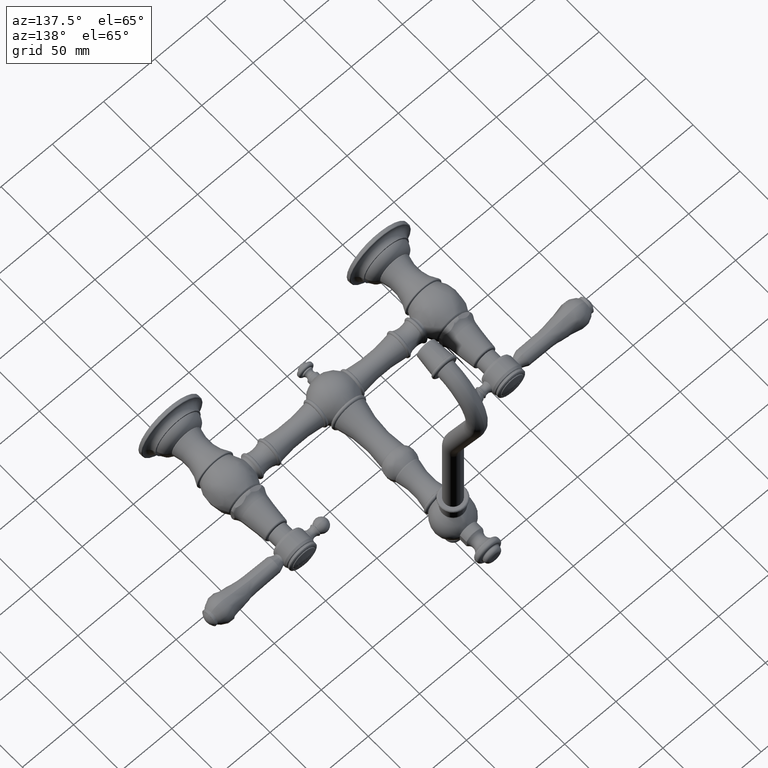
[diagram: clean part render]
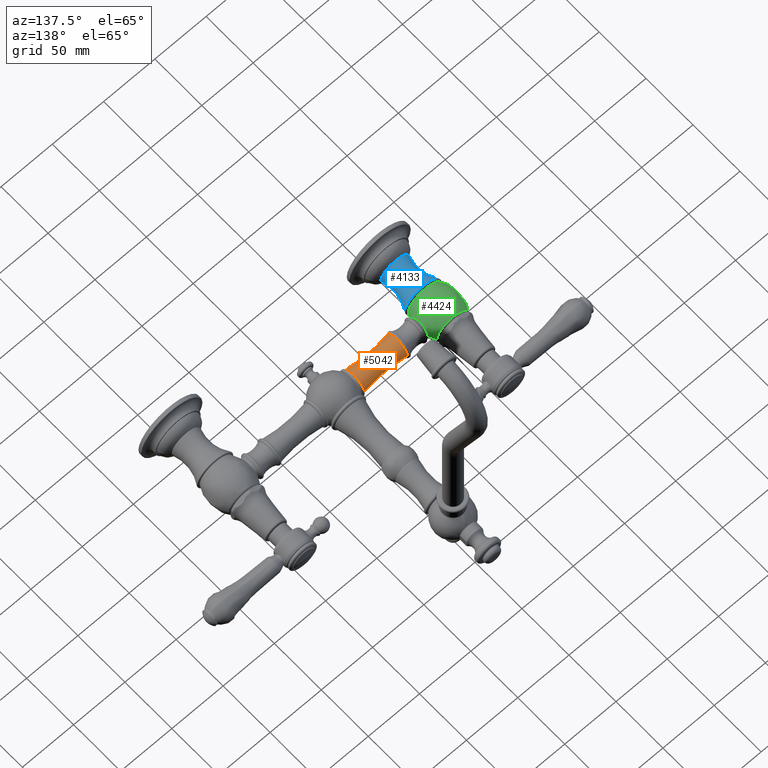
[diagram: same view with three faces highlighted in distinct colors, each labeled with its STEP entity id]
A machine part, auxiliary view with three faces highlighted in distinct colors.
Their STEP definitions:

[orange] entity #5042 — the highlighted toroidal blend (fillet) surface has major radius 135.425 mm and minor (blend) radius 126.408 mm.
#1374=CARTESIAN_POINT('',(-2.426686974877E0,0.E0,0.E0));
#1375=DIRECTION('',(1.E0,0.E0,0.E0));
#1376=DIRECTION('',(0.E0,1.E0,0.E0));
#1377=AXIS2_PLACEMENT_3D('',#1374,#1375,#1376);
#1406=CARTESIAN_POINT('',(-1.594768814263E0,5.331709717009E0,0.E0));
#1407=DIRECTION('',(0.E0,0.E0,-1.E0));
#1408=DIRECTION('',(1.671322744465E-1,-9.859344820212E-1,0.E0));
#1409=AXIS2_PLACEMENT_3D('',#1406,#1407,#1408);
#1414=CARTESIAN_POINT('',(-1.594768814263E0,-5.331709717009E0,0.E0));
#1415=DIRECTION('',(0.E0,0.E0,1.E0));
#1416=DIRECTION('',(1.671322744465E-1,9.859344820212E-1,0.E0));
#1417=AXIS2_PLACEMENT_3D('',#1414,#1415,#1416);
#1430=CARTESIAN_POINT('',(-7.63E-1,0.E0,0.E0));
#1431=DIRECTION('',(1.E0,0.E0,0.E0));
#1432=DIRECTION('',(0.E0,1.E0,0.E0));
#1433=AXIS2_PLACEMENT_3D('',#1430,#1431,#1432);
#3640=CARTESIAN_POINT('',(-2.426686974877E0,4.250253190257E-1,0.E0));
#3642=VERTEX_POINT('',#3640);
#3644=CARTESIAN_POINT('',(-2.426686974877E0,-4.250253190257E-1,0.E0));
#3646=VERTEX_POINT('',#3644);
#3657=CARTESIAN_POINT('',(-7.63E-1,4.25E-1,0.E0));
#3659=VERTEX_POINT('',#3657);
#3661=CARTESIAN_POINT('',(-7.63E-1,-4.25E-1,0.E0));
#3663=VERTEX_POINT('',#3661);
#5030=CARTESIAN_POINT('',(-1.594768814263E0,0.E0,0.E0));
#5031=DIRECTION('',(1.E0,0.E0,0.E0));
#5032=DIRECTION('',(0.E0,-1.E0,0.E0));
#5033=AXIS2_PLACEMENT_3D('',#5030,#5031,#5032);
#5034=TOROIDAL_SURFACE('',#5033,5.331709717009E0,4.976709717009E0);
#5035=ORIENTED_EDGE('',*,*,#5008,.F.);
#5037=ORIENTED_EDGE('',*,*,#5036,.T.);
#5038=ORIENTED_EDGE('',*,*,#5011,.T.);
#5039=ORIENTED_EDGE('',*,*,#4958,.F.);
#5040=EDGE_LOOP('',(#5035,#5037,#5038,#5039));
#5041=FACE_OUTER_BOUND('',#5040,.F.);
#1378=CIRCLE('',#1377,4.250253190257E-1);
#1410=CIRCLE('',#1409,4.976709717009E0);
#1418=CIRCLE('',#1417,4.976709717009E0);
#1434=CIRCLE('',#1433,4.25E-1);
#4958=EDGE_CURVE('',#3642,#3646,#1378,.T.);
#5008=EDGE_CURVE('',#3659,#3642,#1410,.T.);
#5011=EDGE_CURVE('',#3663,#3646,#1418,.T.);
#5036=EDGE_CURVE('',#3659,#3663,#1434,.T.);
#5042=ADVANCED_FACE('',(#5041),#5034,.F.);

[blue] entity #4133 — the highlighted toroidal blend (fillet) surface has major radius 45.6441 mm and minor (blend) radius 33.5791 mm.
#226=CARTESIAN_POINT('',(-4.E0,-1.813661762224E0,0.E0));
#227=DIRECTION('',(0.E0,1.E0,0.E0));
#228=DIRECTION('',(-1.E0,0.E0,-6.201485130730E-14));
#229=AXIS2_PLACEMENT_3D('',#226,#227,#228);
#258=CARTESIAN_POINT('',(-2.202989884174E0,-1.372732374723E0,0.E0));
#259=DIRECTION('',(0.E0,0.E0,-1.E0));
#260=DIRECTION('',(-9.427396593311E-1,-3.335295110245E-1,0.E0));
#261=AXIS2_PLACEMENT_3D('',#258,#259,#260);
#266=CARTESIAN_POINT('',(-5.797010115826E0,-1.372732374723E0,0.E0));
#267=DIRECTION('',(0.E0,0.E0,1.E0));
#268=DIRECTION('',(9.427396593311E-1,-3.335295110245E-1,0.E0));
#269=AXIS2_PLACEMENT_3D('',#266,#267,#268);
#274=CARTESIAN_POINT('',(-4.E0,-6.511049667301E-1,0.E0));
#275=DIRECTION('',(0.E0,-1.E0,0.E0));
#276=DIRECTION('',(1.E0,0.E0,0.E0));
#277=AXIS2_PLACEMENT_3D('',#274,#275,#276);
#3768=CARTESIAN_POINT('',(-4.550698749600E0,-1.813661762224E0,
-3.415149107156E-14));
#3769=CARTESIAN_POINT('',(-3.449301250400E0,-1.813661762224E0,
-3.694782520174E-14));
#3770=VERTEX_POINT('',#3768);
#3771=VERTEX_POINT('',#3769);
#3772=CARTESIAN_POINT('',(-3.310674239204E0,-6.511049667301E-1,0.E0));
#3773=VERTEX_POINT('',#3772);
#3774=CARTESIAN_POINT('',(-4.689325760796E0,-6.511049667301E-1,0.E0));
#3775=VERTEX_POINT('',#3774);
#4121=CARTESIAN_POINT('',(-4.E0,-1.372732374723E0,0.E0));
#4122=DIRECTION('',(0.E0,-1.E0,0.E0));
#4123=DIRECTION('',(-1.E0,0.E0,0.E0));
#4124=AXIS2_PLACEMENT_3D('',#4121,#4122,#4123);
#4125=TOROIDAL_SURFACE('',#4124,1.797010115826E0,1.322010115826E0);
#4126=ORIENTED_EDGE('',*,*,#4050,.F.);
#4127=ORIENTED_EDGE('',*,*,#4104,.T.);
#4129=ORIENTED_EDGE('',*,*,#4128,.F.);
#4130=ORIENTED_EDGE('',*,*,#4100,.F.);
#4131=EDGE_LOOP('',(#4126,#4127,#4129,#4130));
#4132=FACE_OUTER_BOUND('',#4131,.F.);
#230=CIRCLE('',#229,5.506987495999E-1);
#262=CIRCLE('',#261,1.322010115826E0);
#270=CIRCLE('',#269,1.322010115826E0);
#278=CIRCLE('',#277,6.893257607956E-1);
#4050=EDGE_CURVE('',#3770,#3771,#230,.T.);
#4100=EDGE_CURVE('',#3771,#3773,#262,.T.);
#4104=EDGE_CURVE('',#3770,#3775,#270,.T.);
#4128=EDGE_CURVE('',#3773,#3775,#278,.T.);
#4133=ADVANCED_FACE('',(#4132),#4125,.F.);

[green] entity #4424 — the highlighted face is a freeform B-spline surface patch.
#354=CARTESIAN_POINT('',(-4.260075555556E0,0.E0,0.E0));
#355=DIRECTION('',(0.E0,0.E0,1.E0));
#356=DIRECTION('',(9.376915256914E-1,3.474688513329E-1,0.E0));
#357=AXIS2_PLACEMENT_3D('',#354,#355,#356);
#362=CARTESIAN_POINT('',(-3.739924444444E0,0.E0,0.E0));
#363=DIRECTION('',(0.E0,0.E0,-1.E0));
#364=DIRECTION('',(-8.453442948448E-1,-5.342218857117E-1,0.E0));
#365=AXIS2_PLACEMENT_3D('',#362,#363,#364);
#378=CARTESIAN_POINT('',(-4.260075555556E0,0.E0,0.E0));
#379=DIRECTION('',(0.E0,0.E0,1.E0));
#380=DIRECTION('',(8.453442948448E-1,-5.342218857117E-1,0.E0));
#381=AXIS2_PLACEMENT_3D('',#378,#379,#380);
#457=CARTESIAN_POINT('',(-3.266051690519E0,-3.683432356150E-1,0.E0));
#458=CARTESIAN_POINT('',(-3.266051690519E0,-3.683432356150E-1,
9.537708162530E-3));
#459=CARTESIAN_POINT('',(-3.266141288075E0,-3.675818236413E-1,
2.860131953173E-2));
#460=CARTESIAN_POINT('',(-3.266541443477E0,-3.641616358427E-1,
5.701357574999E-2));
#461=CARTESIAN_POINT('',(-3.267193660723E0,-3.585231116849E-1,
8.494299127360E-2));
#462=CARTESIAN_POINT('',(-3.268083988575E0,-3.506913941062E-1,
1.123507934572E-1));
#463=CARTESIAN_POINT('',(-3.269182165432E0,-3.408034824685E-1,
1.388756502043E-1));
#464=CARTESIAN_POINT('',(-3.270470455895E0,-3.288551718504E-1,
1.646138737918E-1));
#465=CARTESIAN_POINT('',(-3.271918027977E0,-3.149288007936E-1,
1.893652933140E-1));
#466=CARTESIAN_POINT('',(-3.273484882442E0,-2.991753964063E-1,
2.128991208093E-1));
#467=CARTESIAN_POINT('',(-3.275134771760E0,-2.817004934626E-1,
2.351123960005E-1));
#468=CARTESIAN_POINT('',(-3.276843008386E0,-2.624612437648E-1,
2.560501666915E-1));
#469=CARTESIAN_POINT('',(-3.278572092147E0,-2.415162019507E-1,
2.755846359996E-1));
#470=CARTESIAN_POINT('',(-3.280280185997E0,-2.189655011371E-1,
2.935681981811E-1));
#471=CARTESIAN_POINT('',(-3.281929301030E0,-1.948319392466E-1,
3.099024703316E-1));
#472=CARTESIAN_POINT('',(-3.283463349203E0,-1.694286836471E-1,
3.243249204661E-1));
#473=CARTESIAN_POINT('',(-3.284848310785E0,-1.427711570141E-1,
3.367881806897E-1));
#474=CARTESIAN_POINT('',(-3.286035975641E0,-1.151791731035E-1,
3.470975024965E-1));
#475=CARTESIAN_POINT('',(-3.286989037339E0,-8.700169315358E-2,
3.551402658688E-1));
#476=CARTESIAN_POINT('',(-3.287687541211E0,-5.835118563356E-2,
3.609133827980E-1));
#477=CARTESIAN_POINT('',(-3.288115129740E0,-2.931431730393E-2,
3.643989214503E-1));
#478=CARTESIAN_POINT('',(-3.288259437251E0,-1.409147653954E-4,
3.655671714510E-1));
#479=CARTESIAN_POINT('',(-3.288117913422E0,2.902845704800E-2,
3.644215029224E-1));
#480=CARTESIAN_POINT('',(-3.287693148947E0,5.806361516308E-2,
3.609592927963E-1));
#481=CARTESIAN_POINT('',(-3.286996712946E0,8.674913004737E-2,
3.552044465663E-1));
#482=CARTESIAN_POINT('',(-3.286040810924E0,1.150593125899E-1,
3.471390362804E-1));
#483=CARTESIAN_POINT('',(-3.284854389416E0,1.426403733034E-1,
3.368415619456E-1));
#484=CARTESIAN_POINT('',(-3.283470912800E0,1.692971540853E-1,
3.243948079704E-1));
#485=CARTESIAN_POINT('',(-3.281932299869E0,1.947871920865E-1,
3.099317845768E-1));
#486=CARTESIAN_POINT('',(-3.280284538878E0,2.189038032193E-1,
2.936120699611E-1));
#487=CARTESIAN_POINT('',(-3.278578178371E0,2.414392720476E-1,
2.756506744986E-1));
#488=CARTESIAN_POINT('',(-3.276849034873E0,2.623911630922E-1,
2.561211168933E-1));
#489=CARTESIAN_POINT('',(-3.275140080896E0,2.816426685035E-1,
2.351805012931E-1));
#490=CARTESIAN_POINT('',(-3.273490158430E0,2.991210004656E-1,
2.129738210088E-1));
#491=CARTESIAN_POINT('',(-3.271922851854E0,3.148815031338E-1,
1.894425304568E-1));
#492=CARTESIAN_POINT('',(-3.270473921610E0,3.288226883985E-1,
1.646792292978E-1));
#493=CARTESIAN_POINT('',(-3.269183042288E0,3.407956828334E-1,
1.388979564913E-1));
#494=CARTESIAN_POINT('',(-3.268083440425E0,3.506962873064E-1,
1.123369282578E-1));
#495=CARTESIAN_POINT('',(-3.267193552875E0,3.585240244466E-1,
8.493754440591E-2));
#496=CARTESIAN_POINT('',(-3.266541487929E0,3.641612570215E-1,
5.701567168106E-2));
#497=CARTESIAN_POINT('',(-3.266141294539E0,3.675817683116E-1,
2.860247273587E-2));
#498=CARTESIAN_POINT('',(-3.266051690519E0,3.683432356150E-1,
9.538390777084E-3));
#499=CARTESIAN_POINT('',(-3.266051690519E0,3.683432356150E-1,0.E0));
#512=CARTESIAN_POINT('',(-4.E0,-5.663155622858E-1,0.E0));
#513=DIRECTION('',(0.E0,-1.E0,0.E0));
#514=DIRECTION('',(1.E0,0.E0,0.E0));
#515=AXIS2_PLACEMENT_3D('',#512,#513,#514);
#528=CARTESIAN_POINT('',(-4.E0,6.105996333622E-1,0.E0));
#529=DIRECTION('',(0.E0,1.E0,0.E0));
#530=DIRECTION('',(-1.E0,0.E0,-7.367290718243E-12));
#531=AXIS2_PLACEMENT_3D('',#528,#529,#530);
#3762=CARTESIAN_POINT('',(-4.606485620141E0,6.105996333622E-1,
-4.468155870011E-12));
#3763=CARTESIAN_POINT('',(-3.393514379859E0,6.105996333622E-1,
5.853682817904E-12));
#3764=VERTEX_POINT('',#3762);
#3765=VERTEX_POINT('',#3763);
#3766=CARTESIAN_POINT('',(-4.636053267438E0,-5.663155622858E-1,0.E0));
#3767=VERTEX_POINT('',#3766);
#3779=CARTESIAN_POINT('',(-3.363946732562E0,-5.663155622858E-1,0.E0));
#3781=VERTEX_POINT('',#3779);
#3786=VERTEX_POINT('',#457);
#3787=VERTEX_POINT('',#499);
#4386=CARTESIAN_POINT('',(-3.409299733861E0,6.308344078809E-1,
-3.716371069076E-2));
#4387=CARTESIAN_POINT('',(-3.134841796563E0,2.594452981819E-1,
-5.443114049101E-2));
#4388=CARTESIAN_POINT('',(-3.123258509266E0,-2.025292580949E-1,
-5.515989915702E-2));
#4389=CARTESIAN_POINT('',(-3.378757957136E0,-5.872588145844E-1,
-3.908523641077E-2));
#4390=CARTESIAN_POINT('',(-3.386429238432E0,6.308344078809E-1,
3.263524045143E-1));
#4391=CARTESIAN_POINT('',(-3.101344949055E0,2.594452981819E-1,
4.779860043446E-1));
#4392=CARTESIAN_POINT('',(-3.089313184697E0,-2.025292580949E-1,
4.843855844334E-1));
#4393=CARTESIAN_POINT('',(-3.354704957474E0,-5.872588145844E-1,
3.432262453501E-1));
#4394=CARTESIAN_POINT('',(-3.635765150521E0,6.308344078809E-1,
5.918681827981E-1));
#4395=CARTESIAN_POINT('',(-3.466530174323E0,2.594452981819E-1,
8.668687709392E-1));
#4396=CARTESIAN_POINT('',(-3.459387741609E0,-2.025292580949E-1,
8.784749604001E-1));
#4397=CARTESIAN_POINT('',(-3.616932622273E0,-5.872588145844E-1,
6.224703459019E-1));
#4398=CARTESIAN_POINT('',(-4.E0,6.308344078809E-1,5.918681827981E-1));
#4399=CARTESIAN_POINT('',(-4.E0,2.594452981819E-1,8.668687709392E-1));
#4400=CARTESIAN_POINT('',(-4.E0,-2.025292580949E-1,8.784749604001E-1));
#4401=CARTESIAN_POINT('',(-4.E0,-5.872588145844E-1,6.224703459019E-1));
#4402=CARTESIAN_POINT('',(-4.364234849479E0,6.308344078809E-1,
5.918681827981E-1));
#4403=CARTESIAN_POINT('',(-4.533469825677E0,2.594452981819E-1,
8.668687709392E-1));
#4404=CARTESIAN_POINT('',(-4.540612258391E0,-2.025292580949E-1,
8.784749604001E-1));
#4405=CARTESIAN_POINT('',(-4.383067377727E0,-5.872588145844E-1,
6.224703459019E-1));
#4406=CARTESIAN_POINT('',(-4.613570761568E0,6.308344078809E-1,
3.263524045143E-1));
#4407=CARTESIAN_POINT('',(-4.898655050945E0,2.594452981819E-1,
4.779860043446E-1));
#4408=CARTESIAN_POINT('',(-4.910686815303E0,-2.025292580949E-1,
4.843855844334E-1));
#4409=CARTESIAN_POINT('',(-4.645295042526E0,-5.872588145844E-1,
3.432262453501E-1));
#4410=CARTESIAN_POINT('',(-4.590700266139E0,6.308344078809E-1,
-3.716371069076E-2));
#4411=CARTESIAN_POINT('',(-4.865158203437E0,2.594452981819E-1,
-5.443114049101E-2));
#4412=CARTESIAN_POINT('',(-4.876741490734E0,-2.025292580949E-1,
-5.515989915702E-2));
#4413=CARTESIAN_POINT('',(-4.621242042864E0,-5.872588145844E-1,
-3.908523641077E-2));
#4414=(BOUNDED_SURFACE()B_SPLINE_SURFACE(3,3,((#4386,#4387,#4388,#4389),(#4390,
#4391,#4392,#4393),(#4394,#4395,#4396,#4397),(#4398,#4399,#4400,#4401),(#4402,
#4403,#4404,#4405),(#4406,#4407,#4408,#4409),(#4410,#4411,#4412,#4413)),
.UNSPECIFIED.,.F.,.F.,.F.)B_SPLINE_SURFACE_WITH_KNOTS((4,3,4),(4,4),(0.E0,1.E0,
2.E0),(0.E0,1.E0),.UNSPECIFIED.)GEOMETRIC_REPRESENTATION_ITEM()RATIONAL_B_SPLINE_SURFACE(((1.305864396587E0,1.147728844463E0,1.147728844463E0,1.305864396587E0),(
1.031238594475E0,9.063592540666E-1,9.063592540666E-1,1.031238594475E0),(
1.031238594475E0,9.063592540666E-1,9.063592540666E-1,1.031238594475E0),(
1.305864396587E0,1.147728844463E0,1.147728844463E0,1.305864396587E0),(
1.031238594475E0,9.063592540666E-1,9.063592540666E-1,1.031238594475E0),(
1.031238594475E0,9.063592540666E-1,9.063592540666E-1,1.031238594475E0),(
1.305864396587E0,1.147728844463E0,1.147728844463E0,1.305864396587E0)))REPRESENTATION_ITEM('')SURFACE());
#4415=ORIENTED_EDGE('',*,*,#4365,.F.);
#4416=ORIENTED_EDGE('',*,*,#4316,.F.);
#4417=ORIENTED_EDGE('',*,*,#4236,.T.);
#4418=ORIENTED_EDGE('',*,*,#4313,.T.);
#4420=ORIENTED_EDGE('',*,*,#4419,.T.);
#4421=ORIENTED_EDGE('',*,*,#4309,.F.);
#4422=EDGE_LOOP('',(#4415,#4416,#4417,#4418,#4420,#4421));
#4423=FACE_OUTER_BOUND('',#4422,.F.);
#358=CIRCLE('',#357,1.060075555556E0);
#366=CIRCLE('',#365,1.060075555556E0);
#382=CIRCLE('',#381,1.060075555556E0);
#500=B_SPLINE_CURVE_WITH_KNOTS('',3,(#457,#458,#459,#460,#461,#462,#463,#464,
#465,#466,#467,#468,#469,#470,#471,#472,#473,#474,#475,#476,#477,#478,#479,#480,
#481,#482,#483,#484,#485,#486,#487,#488,#489,#490,#491,#492,#493,#494,#495,#496,
#497,#498,#499),.UNSPECIFIED.,.F.,.F.,(4,1,1,1,1,1,1,1,1,1,1,1,1,1,1,1,1,1,1,1,
1,1,1,1,1,1,1,1,1,1,1,1,1,1,1,1,1,1,1,1,4),(0.E0,2.5E-2,5.E-2,7.5E-2,1.E-1,
1.25E-1,1.5E-1,1.75E-1,2.E-1,2.25E-1,2.5E-1,2.75E-1,3.E-1,3.25E-1,3.5E-1,
3.75E-1,4.E-1,4.25E-1,4.5E-1,4.75E-1,5.E-1,5.25E-1,5.5E-1,5.75E-1,6.E-1,6.25E-1,
6.5E-1,6.75E-1,7.E-1,7.25E-1,7.5E-1,7.75E-1,8.E-1,8.25E-1,8.5E-1,8.75E-1,9.E-1,
9.25E-1,9.5E-1,9.75E-1,1.E0),.UNSPECIFIED.);
#516=CIRCLE('',#515,6.360532674378E-1);
#532=CIRCLE('',#531,6.064856201409E-1);
#4236=EDGE_CURVE('',#3781,#3767,#516,.T.);
#4309=EDGE_CURVE('',#3787,#3765,#358,.T.);
#4313=EDGE_CURVE('',#3767,#3764,#366,.T.);
#4316=EDGE_CURVE('',#3781,#3786,#382,.T.);
#4365=EDGE_CURVE('',#3786,#3787,#500,.T.);
#4419=EDGE_CURVE('',#3764,#3765,#532,.T.);
#4424=ADVANCED_FACE('',(#4423),#4414,.T.);